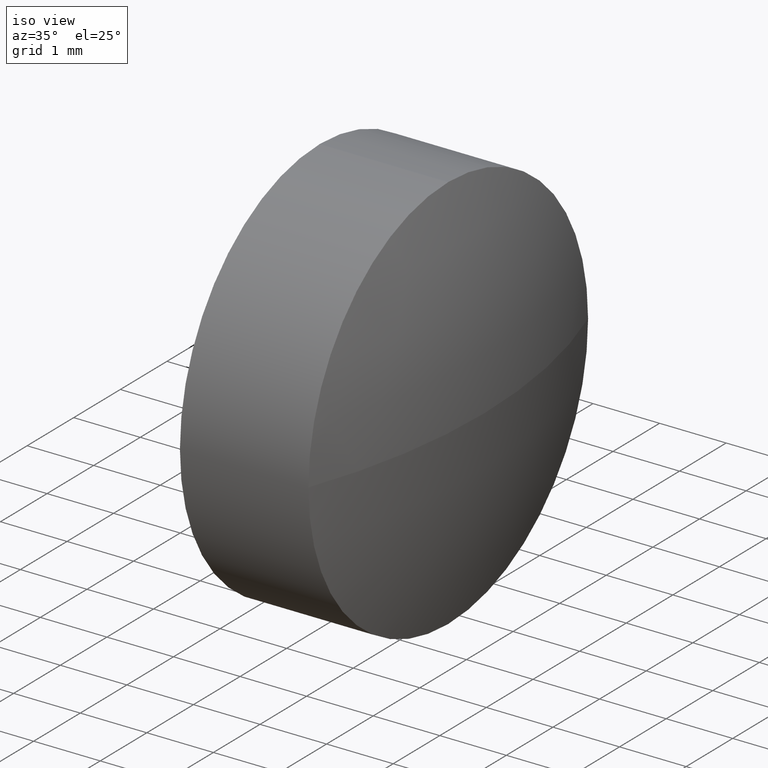
[diagram: clean part render]
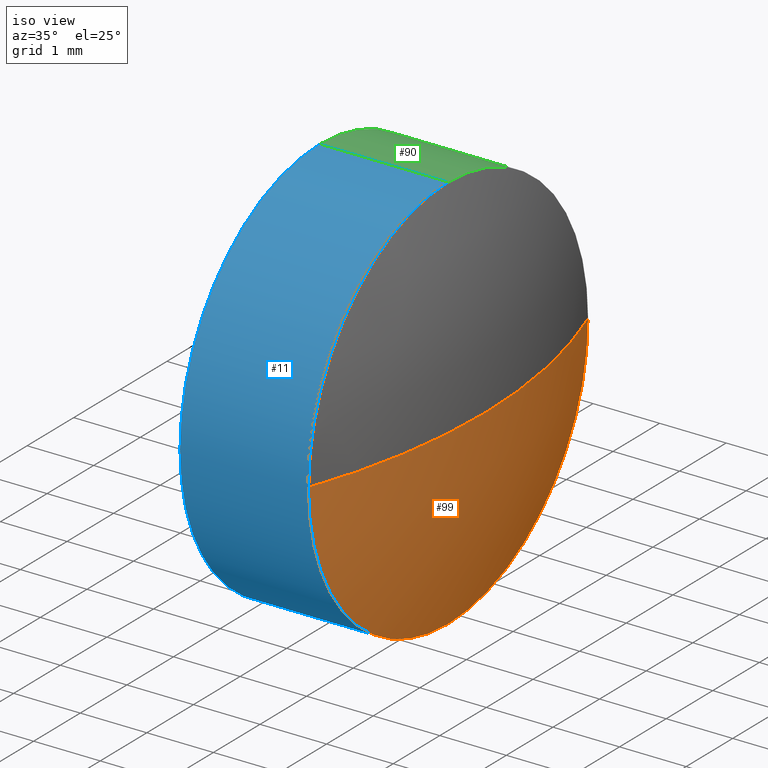
[diagram: same view with three faces highlighted in distinct colors, each labeled with its STEP entity id]
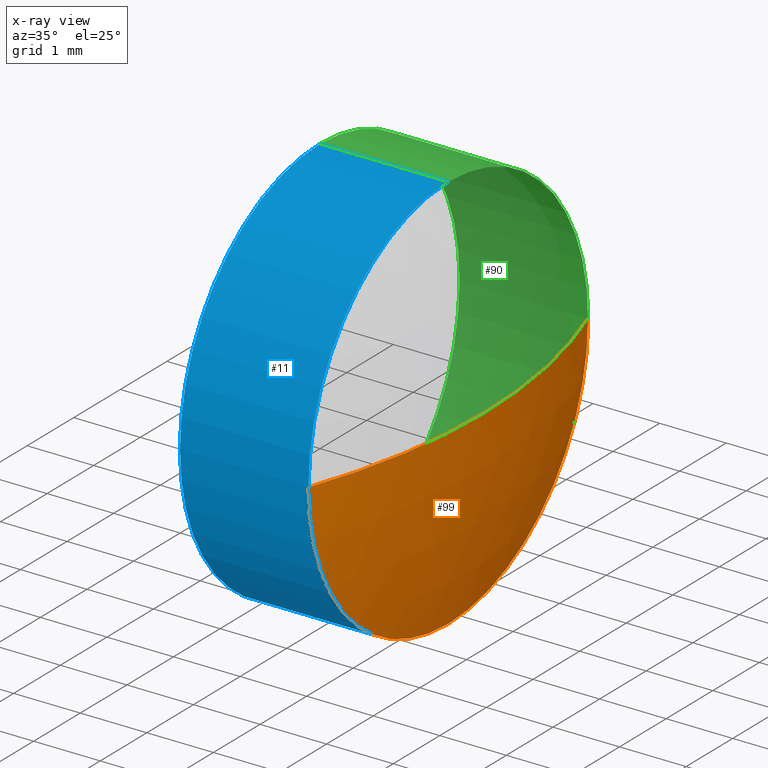
[diagram: x-ray of the same camera — body ghosted, the three highlighted faces saturated]
A machine part, iso view with three faces highlighted in distinct colors.
The next image is the same camera in x-ray (body ghosted, the three faces saturated) — at least one of them is partly hidden behind the body in this view.
Their STEP definitions:

[orange] entity #99 — the highlighted spherical surface has radius 8.6788 mm.
#4 = DIRECTION ( 'NONE',  ( -1.000000000000000000, 0.0000000000000000000, 0.0000000000000000000 ) ) ;
#5 = DIRECTION ( 'NONE',  ( 0.0000000000000000000, 0.0000000000000000000, -1.000000000000000000 ) ) ;
#16 = CARTESIAN_POINT ( 'NONE',  ( 21.38819252269869200, 14.48412118657909000, 3.673940397442051500E-016 ) ) ;
#19 = ORIENTED_EDGE ( 'NONE', *, *, #43, .F. ) ;
#30 = EDGE_CURVE ( 'NONE', #177, #268, #68, .T. ) ;
#43 = EDGE_CURVE ( 'NONE', #268, #321, #210, .T. ) ;
#44 = DIRECTION ( 'NONE',  ( 0.0000000000000000000, -1.224646799147353200E-016, 1.000000000000000000 ) ) ;
#45 = DIRECTION ( 'NONE',  ( -1.000000000000000000, -0.0000000000000000000, -0.0000000000000000000 ) ) ;
#48 = VERTEX_POINT ( 'NONE', #131 ) ;
#68 = CIRCLE ( 'NONE', #132, 8.678801936499844800 ) ;
#74 = EDGE_CURVE ( 'NONE', #321, #48, #102, .T. ) ;
#75 = DIRECTION ( 'NONE',  ( 0.0000000000000000000, -1.000000000000000000, -1.224646799147353000E-016 ) ) ;
#77 = CARTESIAN_POINT ( 'NONE',  ( 21.92318680841297200, 11.48412118657909500, 0.0000000000000000000 ) ) ;
#81 = CARTESIAN_POINT ( 'NONE',  ( 13.24438487191312900, 11.48412118657909500, 0.0000000000000000000 ) ) ;
#99 = ADVANCED_FACE ( 'NONE', ( #163 ), #142, .T. ) ;
#102 = CIRCLE ( 'NONE', #123, 2.999999999999997300 ) ;
#106 = CARTESIAN_POINT ( 'NONE',  ( 13.24438487191312900, 11.48412118657909500, 0.0000000000000000000 ) ) ;
#110 = AXIS2_PLACEMENT_3D ( 'NONE', #259, #45, #183 ) ;
#123 = AXIS2_PLACEMENT_3D ( 'NONE', #311, #339, #240 ) ;
#131 = CARTESIAN_POINT ( 'NONE',  ( 21.38819252269869200, 8.484121186579091800, 0.0000000000000000000 ) ) ;
#132 = AXIS2_PLACEMENT_3D ( 'NONE', #334, #44, #75 ) ;
#142 = SPHERICAL_SURFACE ( 'NONE', #151, 8.678801936499844800 ) ;
#151 = AXIS2_PLACEMENT_3D ( 'NONE', #106, #306, #161 ) ;
#156 = ORIENTED_EDGE ( 'NONE', *, *, #74, .F. ) ;
#161 = DIRECTION ( 'NONE',  ( 0.0000000000000000000, -1.000000000000000000, 0.0000000000000000000 ) ) ;
#163 = FACE_OUTER_BOUND ( 'NONE', #231, .T. ) ;
#177 = VERTEX_POINT ( 'NONE', #77 ) ;
#183 = DIRECTION ( 'NONE',  ( 0.0000000000000000000, 0.0000000000000000000, 1.000000000000000000 ) ) ;
#191 = CARTESIAN_POINT ( 'NONE',  ( 21.38819252269869200, 11.48412118657908500, -2.999999999999997300 ) ) ;
#210 = CIRCLE ( 'NONE', #110, 2.999999999999997300 ) ;
#216 = AXIS2_PLACEMENT_3D ( 'NONE', #81, #5, #4 ) ;
#231 = EDGE_LOOP ( 'NONE', ( #271, #247, #156, #19 ) ) ;
#240 = DIRECTION ( 'NONE',  ( 0.0000000000000000000, 0.0000000000000000000, 1.000000000000000000 ) ) ;
#247 = ORIENTED_EDGE ( 'NONE', *, *, #343, .T. ) ;
#259 = CARTESIAN_POINT ( 'NONE',  ( 21.38819252269869200, 11.48412118657908500, 0.0000000000000000000 ) ) ;
#268 = VERTEX_POINT ( 'NONE', #16 ) ;
#270 = CIRCLE ( 'NONE', #216, 8.678801936499844800 ) ;
#271 = ORIENTED_EDGE ( 'NONE', *, *, #30, .F. ) ;
#306 = DIRECTION ( 'NONE',  ( 0.0000000000000000000, 0.0000000000000000000, 1.000000000000000000 ) ) ;
#311 = CARTESIAN_POINT ( 'NONE',  ( 21.38819252269869200, 11.48412118657908500, 0.0000000000000000000 ) ) ;
#321 = VERTEX_POINT ( 'NONE', #191 ) ;
#334 = CARTESIAN_POINT ( 'NONE',  ( 13.24438487191312900, 11.48412118657909500, 0.0000000000000000000 ) ) ;
#339 = DIRECTION ( 'NONE',  ( -1.000000000000000000, -0.0000000000000000000, -0.0000000000000000000 ) ) ;
#343 = EDGE_CURVE ( 'NONE', #177, #48, #270, .T. ) ;

[blue] entity #11 — the highlighted cylindrical surface (partial cylindrical patch) has radius 3 mm, axis along (-1, -0, -0).
#2 = VERTEX_POINT ( 'NONE', #328 ) ;
#11 = ADVANCED_FACE ( 'NONE', ( #139 ), #187, .T. ) ;
#12 = VERTEX_POINT ( 'NONE', #254 ) ;
#13 = EDGE_CURVE ( 'NONE', #79, #2, #341, .T. ) ;
#20 = CARTESIAN_POINT ( 'NONE',  ( 19.45819823698440500, 11.48412118657908500, 2.999999999999997300 ) ) ;
#28 = VECTOR ( 'NONE', #108, 1000.000000000000000 ) ;
#42 = ORIENTED_EDGE ( 'NONE', *, *, #205, .F. ) ;
#47 = CIRCLE ( 'NONE', #242, 2.999999999999997300 ) ;
#48 = VERTEX_POINT ( 'NONE', #131 ) ;
#55 = DIRECTION ( 'NONE',  ( -1.000000000000000000, -0.0000000000000000000, -0.0000000000000000000 ) ) ;
#58 = DIRECTION ( 'NONE',  ( -1.000000000000000000, -0.0000000000000000000, -0.0000000000000000000 ) ) ;
#69 = CARTESIAN_POINT ( 'NONE',  ( 17.39494765631539900, 11.48412118657908500, 0.0000000000000000000 ) ) ;
#74 = EDGE_CURVE ( 'NONE', #321, #48, #102, .T. ) ;
#79 = VERTEX_POINT ( 'NONE', #145 ) ;
#86 = ORIENTED_EDGE ( 'NONE', *, *, #13, .F. ) ;
#87 = DIRECTION ( 'NONE',  ( -1.000000000000000000, -0.0000000000000000000, -0.0000000000000000000 ) ) ;
#93 = AXIS2_PLACEMENT_3D ( 'NONE', #69, #96, #278 ) ;
#96 = DIRECTION ( 'NONE',  ( -1.000000000000000000, -0.0000000000000000000, -0.0000000000000000000 ) ) ;
#97 = VECTOR ( 'NONE', #218, 1000.000000000000000 ) ;
#102 = CIRCLE ( 'NONE', #123, 2.999999999999997300 ) ;
#108 = DIRECTION ( 'NONE',  ( -1.000000000000000000, -0.0000000000000000000, -0.0000000000000000000 ) ) ;
#123 = AXIS2_PLACEMENT_3D ( 'NONE', #311, #339, #240 ) ;
#131 = CARTESIAN_POINT ( 'NONE',  ( 21.38819252269869200, 8.484121186579091800, 0.0000000000000000000 ) ) ;
#139 = FACE_OUTER_BOUND ( 'NONE', #315, .T. ) ;
#145 = CARTESIAN_POINT ( 'NONE',  ( 19.45819823698440500, 11.48412118657908500, -2.999999999999997300 ) ) ;
#154 = DIRECTION ( 'NONE',  ( 0.0000000000000000000, 0.0000000000000000000, 1.000000000000000000 ) ) ;
#172 = VERTEX_POINT ( 'NONE', #20 ) ;
#181 = ORIENTED_EDGE ( 'NONE', *, *, #74, .T. ) ;
#187 = CYLINDRICAL_SURFACE ( 'NONE', #93, 2.999999999999997300 ) ;
#191 = CARTESIAN_POINT ( 'NONE',  ( 21.38819252269869200, 11.48412118657908500, -2.999999999999997300 ) ) ;
#193 = DIRECTION ( 'NONE',  ( 0.0000000000000000000, 0.0000000000000000000, 1.000000000000000000 ) ) ;
#201 = AXIS2_PLACEMENT_3D ( 'NONE', #313, #55, #288 ) ;
#205 = EDGE_CURVE ( 'NONE', #321, #79, #345, .T. ) ;
#213 = CARTESIAN_POINT ( 'NONE',  ( 17.39494765631539900, 11.48412118657908500, 2.999999999999997300 ) ) ;
#218 = DIRECTION ( 'NONE',  ( -1.000000000000000000, -0.0000000000000000000, -0.0000000000000000000 ) ) ;
#220 = AXIS2_PLACEMENT_3D ( 'NONE', #299, #87, #154 ) ;
#221 = CIRCLE ( 'NONE', #201, 2.999999999999997300 ) ;
#235 = EDGE_CURVE ( 'NONE', #12, #172, #277, .T. ) ;
#240 = DIRECTION ( 'NONE',  ( 0.0000000000000000000, 0.0000000000000000000, 1.000000000000000000 ) ) ;
#242 = AXIS2_PLACEMENT_3D ( 'NONE', #317, #58, #193 ) ;
#254 = CARTESIAN_POINT ( 'NONE',  ( 21.38819252269869200, 11.48412118657908500, 2.999999999999997300 ) ) ;
#265 = ORIENTED_EDGE ( 'NONE', *, *, #235, .T. ) ;
#277 = LINE ( 'NONE', #213, #28 ) ;
#278 = DIRECTION ( 'NONE',  ( 0.0000000000000000000, 0.0000000000000000000, 1.000000000000000000 ) ) ;
#282 = EDGE_CURVE ( 'NONE', #2, #172, #47, .T. ) ;
#288 = DIRECTION ( 'NONE',  ( 0.0000000000000000000, 0.0000000000000000000, 1.000000000000000000 ) ) ;
#292 = ORIENTED_EDGE ( 'NONE', *, *, #282, .F. ) ;
#299 = CARTESIAN_POINT ( 'NONE',  ( 19.45819823698440500, 11.48412118657908500, 0.0000000000000000000 ) ) ;
#302 = EDGE_CURVE ( 'NONE', #48, #12, #221, .T. ) ;
#308 = CARTESIAN_POINT ( 'NONE',  ( 17.39494765631539900, 11.48412118657908500, -2.999999999999997300 ) ) ;
#311 = CARTESIAN_POINT ( 'NONE',  ( 21.38819252269869200, 11.48412118657908500, 0.0000000000000000000 ) ) ;
#312 = ORIENTED_EDGE ( 'NONE', *, *, #302, .T. ) ;
#313 = CARTESIAN_POINT ( 'NONE',  ( 21.38819252269869200, 11.48412118657908500, 0.0000000000000000000 ) ) ;
#315 = EDGE_LOOP ( 'NONE', ( #42, #181, #312, #265, #292, #86 ) ) ;
#317 = CARTESIAN_POINT ( 'NONE',  ( 19.45819823698440500, 11.48412118657908500, 0.0000000000000000000 ) ) ;
#321 = VERTEX_POINT ( 'NONE', #191 ) ;
#328 = CARTESIAN_POINT ( 'NONE',  ( 19.45819823698440100, 8.484121186579086400, -3.673940397442054400E-016 ) ) ;
#339 = DIRECTION ( 'NONE',  ( -1.000000000000000000, -0.0000000000000000000, -0.0000000000000000000 ) ) ;
#341 = CIRCLE ( 'NONE', #220, 2.999999999999997300 ) ;
#345 = LINE ( 'NONE', #308, #97 ) ;

[green] entity #90 — the highlighted cylindrical surface (partial cylindrical patch) has radius 3 mm, axis along (-1, -0, -0).
#12 = VERTEX_POINT ( 'NONE', #254 ) ;
#14 = EDGE_CURVE ( 'NONE', #12, #268, #215, .T. ) ;
#16 = CARTESIAN_POINT ( 'NONE',  ( 21.38819252269869200, 14.48412118657909000, 3.673940397442051500E-016 ) ) ;
#20 = CARTESIAN_POINT ( 'NONE',  ( 19.45819823698440500, 11.48412118657908500, 2.999999999999997300 ) ) ;
#27 = CARTESIAN_POINT ( 'NONE',  ( 19.45819823698440500, 11.48412118657908500, 0.0000000000000000000 ) ) ;
#28 = VECTOR ( 'NONE', #108, 1000.000000000000000 ) ;
#33 = EDGE_CURVE ( 'NONE', #98, #79, #335, .T. ) ;
#43 = EDGE_CURVE ( 'NONE', #268, #321, #210, .T. ) ;
#45 = DIRECTION ( 'NONE',  ( -1.000000000000000000, -0.0000000000000000000, -0.0000000000000000000 ) ) ;
#71 = DIRECTION ( 'NONE',  ( -1.000000000000000000, -0.0000000000000000000, -0.0000000000000000000 ) ) ;
#78 = CYLINDRICAL_SURFACE ( 'NONE', #184, 2.999999999999997300 ) ;
#79 = VERTEX_POINT ( 'NONE', #145 ) ;
#90 = ADVANCED_FACE ( 'NONE', ( #164 ), #78, .T. ) ;
#97 = VECTOR ( 'NONE', #218, 1000.000000000000000 ) ;
#98 = VERTEX_POINT ( 'NONE', #263 ) ;
#103 = CARTESIAN_POINT ( 'NONE',  ( 19.45819823698440500, 11.48412118657908500, 0.0000000000000000000 ) ) ;
#108 = DIRECTION ( 'NONE',  ( -1.000000000000000000, -0.0000000000000000000, -0.0000000000000000000 ) ) ;
#110 = AXIS2_PLACEMENT_3D ( 'NONE', #259, #45, #183 ) ;
#117 = ORIENTED_EDGE ( 'NONE', *, *, #235, .F. ) ;
#121 = ORIENTED_EDGE ( 'NONE', *, *, #323, .F. ) ;
#128 = EDGE_LOOP ( 'NONE', ( #185, #303, #136, #121, #117, #241 ) ) ;
#130 = CARTESIAN_POINT ( 'NONE',  ( 21.38819252269869200, 11.48412118657908500, 0.0000000000000000000 ) ) ;
#133 = DIRECTION ( 'NONE',  ( 0.0000000000000000000, 0.0000000000000000000, 1.000000000000000000 ) ) ;
#136 = ORIENTED_EDGE ( 'NONE', *, *, #33, .F. ) ;
#137 = CARTESIAN_POINT ( 'NONE',  ( 17.39494765631539900, 11.48412118657908500, 0.0000000000000000000 ) ) ;
#145 = CARTESIAN_POINT ( 'NONE',  ( 19.45819823698440500, 11.48412118657908500, -2.999999999999997300 ) ) ;
#158 = AXIS2_PLACEMENT_3D ( 'NONE', #103, #331, #133 ) ;
#164 = FACE_OUTER_BOUND ( 'NONE', #128, .T. ) ;
#165 = DIRECTION ( 'NONE',  ( 0.0000000000000000000, 0.0000000000000000000, 1.000000000000000000 ) ) ;
#172 = VERTEX_POINT ( 'NONE', #20 ) ;
#178 = AXIS2_PLACEMENT_3D ( 'NONE', #130, #71, #197 ) ;
#183 = DIRECTION ( 'NONE',  ( 0.0000000000000000000, 0.0000000000000000000, 1.000000000000000000 ) ) ;
#184 = AXIS2_PLACEMENT_3D ( 'NONE', #137, #342, #165 ) ;
#185 = ORIENTED_EDGE ( 'NONE', *, *, #43, .T. ) ;
#191 = CARTESIAN_POINT ( 'NONE',  ( 21.38819252269869200, 11.48412118657908500, -2.999999999999997300 ) ) ;
#197 = DIRECTION ( 'NONE',  ( 0.0000000000000000000, 0.0000000000000000000, 1.000000000000000000 ) ) ;
#205 = EDGE_CURVE ( 'NONE', #321, #79, #345, .T. ) ;
#210 = CIRCLE ( 'NONE', #110, 2.999999999999997300 ) ;
#213 = CARTESIAN_POINT ( 'NONE',  ( 17.39494765631539900, 11.48412118657908500, 2.999999999999997300 ) ) ;
#215 = CIRCLE ( 'NONE', #178, 2.999999999999997300 ) ;
#218 = DIRECTION ( 'NONE',  ( -1.000000000000000000, -0.0000000000000000000, -0.0000000000000000000 ) ) ;
#222 = DIRECTION ( 'NONE',  ( -1.000000000000000000, -0.0000000000000000000, -0.0000000000000000000 ) ) ;
#235 = EDGE_CURVE ( 'NONE', #12, #172, #277, .T. ) ;
#241 = ORIENTED_EDGE ( 'NONE', *, *, #14, .T. ) ;
#251 = AXIS2_PLACEMENT_3D ( 'NONE', #27, #222, #289 ) ;
#254 = CARTESIAN_POINT ( 'NONE',  ( 21.38819252269869200, 11.48412118657908500, 2.999999999999997300 ) ) ;
#259 = CARTESIAN_POINT ( 'NONE',  ( 21.38819252269869200, 11.48412118657908500, 0.0000000000000000000 ) ) ;
#263 = CARTESIAN_POINT ( 'NONE',  ( 19.45819823698440100, 14.48412118657908100, 0.0000000000000000000 ) ) ;
#268 = VERTEX_POINT ( 'NONE', #16 ) ;
#277 = LINE ( 'NONE', #213, #28 ) ;
#289 = DIRECTION ( 'NONE',  ( 0.0000000000000000000, 0.0000000000000000000, 1.000000000000000000 ) ) ;
#301 = CIRCLE ( 'NONE', #251, 2.999999999999997300 ) ;
#303 = ORIENTED_EDGE ( 'NONE', *, *, #205, .T. ) ;
#308 = CARTESIAN_POINT ( 'NONE',  ( 17.39494765631539900, 11.48412118657908500, -2.999999999999997300 ) ) ;
#321 = VERTEX_POINT ( 'NONE', #191 ) ;
#323 = EDGE_CURVE ( 'NONE', #172, #98, #301, .T. ) ;
#331 = DIRECTION ( 'NONE',  ( -1.000000000000000000, -0.0000000000000000000, -0.0000000000000000000 ) ) ;
#335 = CIRCLE ( 'NONE', #158, 2.999999999999997300 ) ;
#342 = DIRECTION ( 'NONE',  ( -1.000000000000000000, -0.0000000000000000000, -0.0000000000000000000 ) ) ;
#345 = LINE ( 'NONE', #308, #97 ) ;